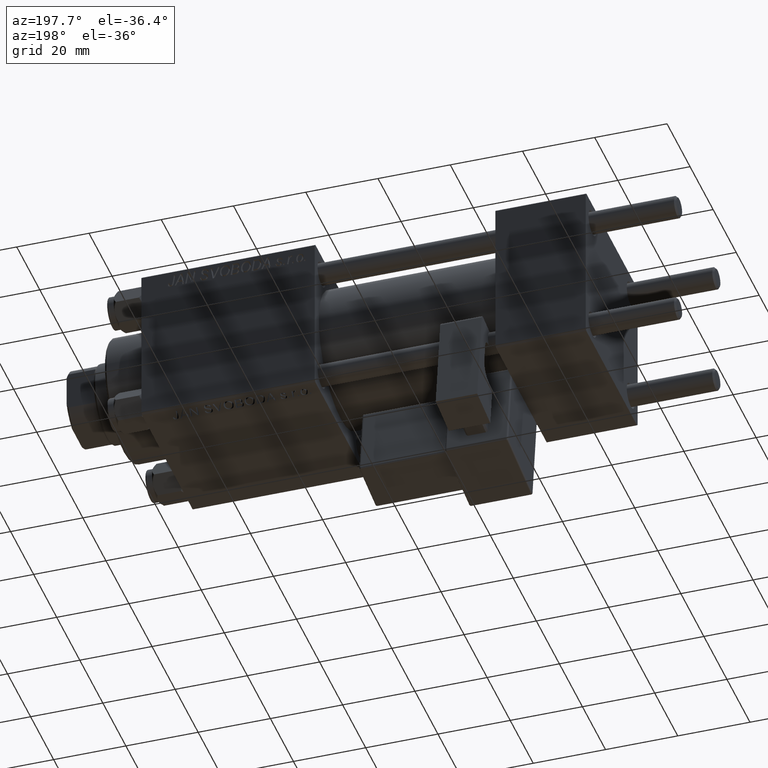
[diagram: clean part render]
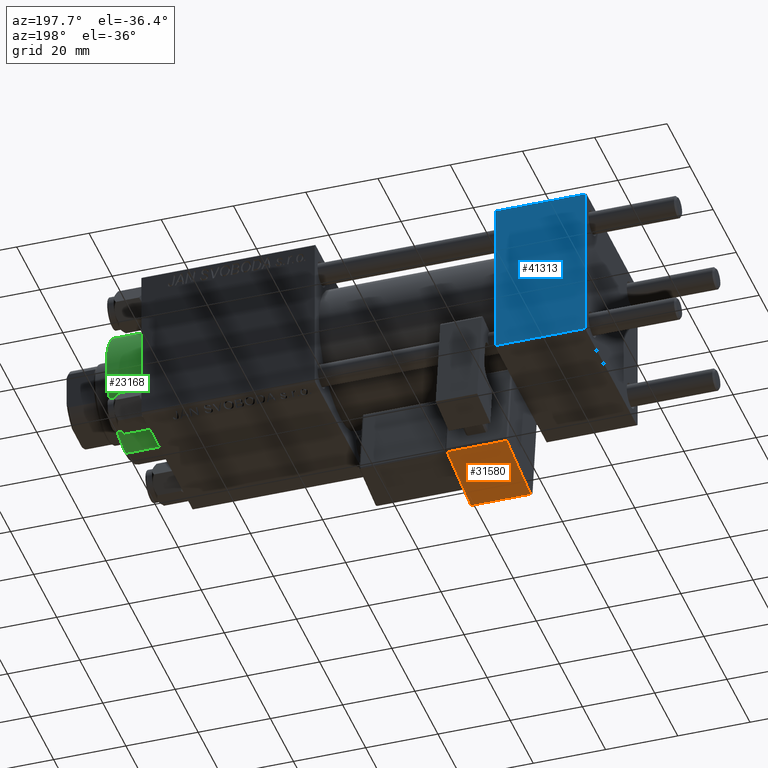
[diagram: same view with three faces highlighted in distinct colors, each labeled with its STEP entity id]
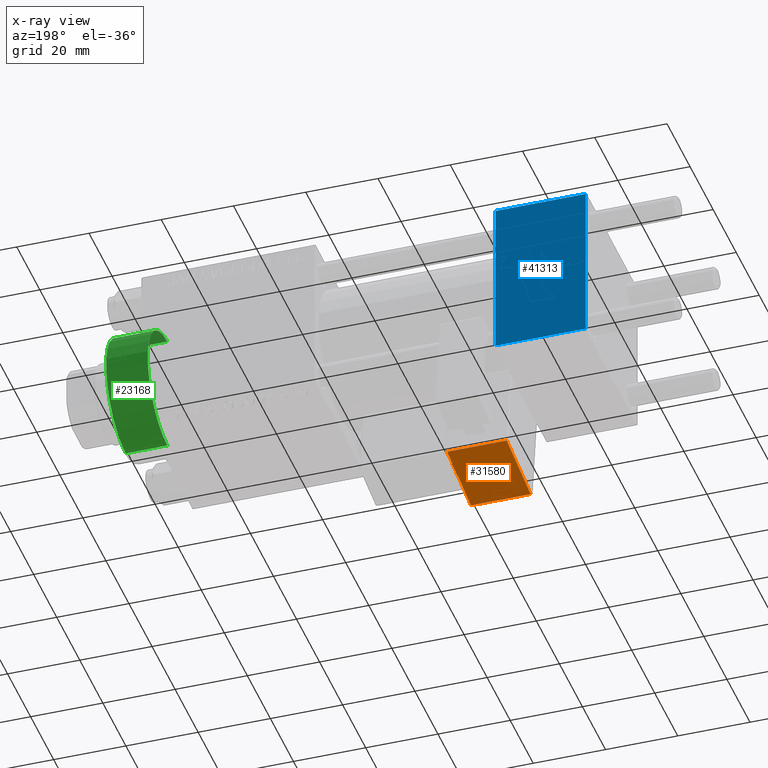
[diagram: x-ray of the same camera — body ghosted, the three highlighted faces saturated]
A machine part, auxiliary view with three faces highlighted in distinct colors.
The next image is the same camera in x-ray (body ghosted, the three faces saturated) — at least one of them is partly hidden behind the body in this view.
Their STEP definitions:

[orange] entity #31580 — the highlighted planar face has unit normal (-0, -0.1399, 0.9902).
#1608 = DIRECTION ( 'NONE',  ( 0.000000000000000000, 0.000000000000000000, 1.000000000000000000 ) ) ;
#3057 = VERTEX_POINT ( 'NONE', #25697 ) ;
#4504 = EDGE_CURVE ( 'NONE', #17625, #52115, #25651, .T. ) ;
#5595 = CARTESIAN_POINT ( 'NONE',  ( -8.250000000000003553, -33.75000000000000000, -1.000000000000000222 ) ) ;
#8889 = VECTOR ( 'NONE', #37096, 1000.000000000000000 ) ;
#9312 = VECTOR ( 'NONE', #40220, 1000.000000000000000 ) ;
#16055 = ORIENTED_EDGE ( 'NONE', *, *, #48258, .T. ) ;
#16996 = LINE ( 'NONE', #29152, #8889 ) ;
#17625 = VERTEX_POINT ( 'NONE', #33726 ) ;
#17654 = VECTOR ( 'NONE', #49747, 1000.000000000000000 ) ;
#17676 = AXIS2_PLACEMENT_3D ( 'NONE', #37821, #1608, #39054 ) ;
#18846 = DIRECTION ( 'NONE',  ( 1.000000000000000000, -0.000000000000000000, 0.000000000000000000 ) ) ;
#19235 = EDGE_CURVE ( 'NONE', #52115, #47515, #26244, .T. ) ;
#22519 = ORIENTED_EDGE ( 'NONE', *, *, #4504, .T. ) ;
#23808 = LINE ( 'NONE', #28045, #9312 ) ;
#23823 = ORIENTED_EDGE ( 'NONE', *, *, #33327, .T. ) ;
#24774 = CARTESIAN_POINT ( 'NONE',  ( 8.250000000000003553, -12.25000000000000000, -1.000000000000000222 ) ) ;
#25651 = LINE ( 'NONE', #5595, #17654 ) ;
#25697 = CARTESIAN_POINT ( 'NONE',  ( 8.250000000000003553, -33.25000000000000000, -1.000000000000000222 ) ) ;
#26244 = LINE ( 'NONE', #51370, #50147 ) ;
#27131 = PLANE ( 'NONE',  #17676 ) ;
#28045 = CARTESIAN_POINT ( 'NONE',  ( 8.750000000000003553, -33.25000000000000000, -1.000000000000000222 ) ) ;
#29152 = CARTESIAN_POINT ( 'NONE',  ( 8.250000000000003553, -33.75000000000000000, -1.000000000000000222 ) ) ;
#30965 = CARTESIAN_POINT ( 'NONE',  ( -8.250000000000003553, -12.25000000000000000, -1.000000000000000222 ) ) ;
#31101 = FACE_OUTER_BOUND ( 'NONE', #40994, .T. ) ;
#31580 = ADVANCED_FACE ( 'NONE', ( #31101 ), #27131, .F. ) ;
#33327 = EDGE_CURVE ( 'NONE', #3057, #17625, #23808, .T. ) ;
#33726 = CARTESIAN_POINT ( 'NONE',  ( -8.250000000000003553, -33.25000000000000000, -1.000000000000000222 ) ) ;
#36751 = ORIENTED_EDGE ( 'NONE', *, *, #19235, .T. ) ;
#37096 = DIRECTION ( 'NONE',  ( -0.000000000000000000, -1.000000000000000000, -0.000000000000000000 ) ) ;
#37821 = CARTESIAN_POINT ( 'NONE',  ( 8.750000000000003553, -33.75000000000000000, -1.000000000000000222 ) ) ;
#39054 = DIRECTION ( 'NONE',  ( 1.000000000000000000, 0.000000000000000000, -0.000000000000000000 ) ) ;
#40220 = DIRECTION ( 'NONE',  ( -1.000000000000000000, -0.000000000000000000, 0.000000000000000000 ) ) ;
#40994 = EDGE_LOOP ( 'NONE', ( #36751, #16055, #23823, #22519 ) ) ;
#47515 = VERTEX_POINT ( 'NONE', #24774 ) ;
#48258 = EDGE_CURVE ( 'NONE', #47515, #3057, #16996, .T. ) ;
#49747 = DIRECTION ( 'NONE',  ( -0.000000000000000000, 1.000000000000000000, 0.000000000000000000 ) ) ;
#50147 = VECTOR ( 'NONE', #18846, 1000.000000000000000 ) ;
#51370 = CARTESIAN_POINT ( 'NONE',  ( 8.750000000000003553, -12.25000000000000000, -1.000000000000000222 ) ) ;
#52115 = VERTEX_POINT ( 'NONE', #30965 ) ;

[blue] entity #41313 — the highlighted planar face has unit normal (0, 1, 0).
#534 = ORIENTED_EDGE ( 'NONE', *, *, #50777, .T. ) ;
#2307 = LINE ( 'NONE', #25273, #17406 ) ;
#2713 = PLANE ( 'NONE',  #12973 ) ;
#6695 = VERTEX_POINT ( 'NONE', #22987 ) ;
#7295 = EDGE_CURVE ( 'NONE', #6695, #30107, #50397, .T. ) ;
#10216 = DIRECTION ( 'NONE',  ( 0.000000000000000000, 0.000000000000000000, -1.000000000000000000 ) ) ;
#10846 = CARTESIAN_POINT ( 'NONE',  ( 0.000000000000000000, 22.50000000000000000, -21.99999999999996803 ) ) ;
#12248 = ORIENTED_EDGE ( 'NONE', *, *, #39938, .T. ) ;
#12973 = AXIS2_PLACEMENT_3D ( 'NONE', #30198, #22780, #46855 ) ;
#14178 = CARTESIAN_POINT ( 'NONE',  ( 25.00000000000000000, 22.50000000000000000, 22.50000000000000355 ) ) ;
#17406 = VECTOR ( 'NONE', #49895, 1000.000000000000000 ) ;
#17580 = CARTESIAN_POINT ( 'NONE',  ( 25.00000000000000000, 22.50000000000000000, -21.99999999999998224 ) ) ;
#17704 = CARTESIAN_POINT ( 'NONE',  ( 25.00000000000000000, 22.50000000000000000, -21.99999999999996803 ) ) ;
#17843 = LINE ( 'NONE', #17580, #45020 ) ;
#21791 = DIRECTION ( 'NONE',  ( -1.000000000000000000, 0.000000000000000000, 0.000000000000000000 ) ) ;
#22780 = DIRECTION ( 'NONE',  ( -0.000000000000000000, 1.000000000000000000, 0.000000000000000000 ) ) ;
#22987 = CARTESIAN_POINT ( 'NONE',  ( 25.00000000000000000, 22.50000000000000000, 21.99999999999999645 ) ) ;
#25273 = CARTESIAN_POINT ( 'NONE',  ( 25.00000000000000000, 22.50000000000000000, 21.99999999999999645 ) ) ;
#25976 = ORIENTED_EDGE ( 'NONE', *, *, #48920, .F. ) ;
#26744 = FACE_OUTER_BOUND ( 'NONE', #39790, .T. ) ;
#29221 = LINE ( 'NONE', #37163, #50290 ) ;
#30107 = VERTEX_POINT ( 'NONE', #17704 ) ;
#30198 = CARTESIAN_POINT ( 'NONE',  ( 25.00000000000000000, 22.50000000000000000, 22.50000000000000355 ) ) ;
#37163 = CARTESIAN_POINT ( 'NONE',  ( 0.000000000000000000, 22.50000000000000000, 22.50000000000000355 ) ) ;
#39110 = VERTEX_POINT ( 'NONE', #48614 ) ;
#39790 = EDGE_LOOP ( 'NONE', ( #47691, #12248, #25976, #534 ) ) ;
#39938 = EDGE_CURVE ( 'NONE', #30107, #49505, #17843, .T. ) ;
#41313 = ADVANCED_FACE ( 'NONE', ( #26744 ), #2713, .T. ) ;
#45020 = VECTOR ( 'NONE', #21791, 1000.000000000000000 ) ;
#45088 = DIRECTION ( 'NONE',  ( 0.000000000000000000, 0.000000000000000000, -1.000000000000000000 ) ) ;
#46855 = DIRECTION ( 'NONE',  ( 0.000000000000000000, -0.000000000000000000, 1.000000000000000000 ) ) ;
#47691 = ORIENTED_EDGE ( 'NONE', *, *, #7295, .T. ) ;
#48614 = CARTESIAN_POINT ( 'NONE',  ( 0.000000000000000000, 22.50000000000000000, 21.99999999999999645 ) ) ;
#48920 = EDGE_CURVE ( 'NONE', #39110, #49505, #29221, .T. ) ;
#49505 = VERTEX_POINT ( 'NONE', #10846 ) ;
#49895 = DIRECTION ( 'NONE',  ( 1.000000000000000000, 0.000000000000000000, 0.000000000000000000 ) ) ;
#50290 = VECTOR ( 'NONE', #45088, 1000.000000000000000 ) ;
#50397 = LINE ( 'NONE', #14178, #51550 ) ;
#50777 = EDGE_CURVE ( 'NONE', #39110, #6695, #2307, .T. ) ;
#51550 = VECTOR ( 'NONE', #10216, 1000.000000000000000 ) ;

[green] entity #23168 — the highlighted cylindrical surface (partial cylindrical patch) has radius 17 mm, axis along (-1, -0, 0).
#1376 = AXIS2_PLACEMENT_3D ( 'NONE', #44155, #3200, #3727 ) ;
#2702 = DIRECTION ( 'NONE',  ( 1.000000000000000000, 0.000000000000000000, 0.000000000000000000 ) ) ;
#3200 = DIRECTION ( 'NONE',  ( 0.000000000000000000, 0.000000000000000000, -1.000000000000000000 ) ) ;
#3727 = DIRECTION ( 'NONE',  ( 1.000000000000000000, 0.000000000000000000, 0.000000000000000000 ) ) ;
#5633 = CIRCLE ( 'NONE', #41922, 17.00000000000000000 ) ;
#6488 = VERTEX_POINT ( 'NONE', #7002 ) ;
#6534 = VERTEX_POINT ( 'NONE', #19409 ) ;
#7002 = CARTESIAN_POINT ( 'NONE',  ( -17.00000000000000000, 0.000000000000000000, 28.69999999999999929 ) ) ;
#9725 = LINE ( 'NONE', #18418, #17192 ) ;
#10383 = CARTESIAN_POINT ( 'NONE',  ( 0.000000000000000000, 0.000000000000000000, 28.69999999999999929 ) ) ;
#12191 = ORIENTED_EDGE ( 'NONE', *, *, #51819, .F. ) ;
#12400 = VECTOR ( 'NONE', #33953, 1000.000000000000000 ) ;
#15014 = EDGE_CURVE ( 'NONE', #6534, #20027, #9725, .T. ) ;
#15828 = FACE_OUTER_BOUND ( 'NONE', #26375, .T. ) ;
#16611 = ORIENTED_EDGE ( 'NONE', *, *, #15014, .T. ) ;
#17192 = VECTOR ( 'NONE', #49386, 1000.000000000000000 ) ;
#18297 = DIRECTION ( 'NONE',  ( 0.000000000000000000, 0.000000000000000000, 1.000000000000000000 ) ) ;
#18418 = CARTESIAN_POINT ( 'NONE',  ( 17.00000000000000000, 2.081899558550500280E-15, 40.70000000000000284 ) ) ;
#19409 = CARTESIAN_POINT ( 'NONE',  ( 17.00000000000000000, 2.081899558550500280E-15, 40.19999999999999574 ) ) ;
#20027 = VERTEX_POINT ( 'NONE', #32499 ) ;
#20828 = CARTESIAN_POINT ( 'NONE',  ( 0.000000000000000000, 0.000000000000000000, 40.70000000000000284 ) ) ;
#21344 = DIRECTION ( 'NONE',  ( -0.000000000000000000, -0.000000000000000000, -1.000000000000000000 ) ) ;
#21785 = LINE ( 'NONE', #46639, #12400 ) ;
#23168 = ADVANCED_FACE ( 'NONE', ( #15828 ), #24006, .T. ) ;
#24006 = CYLINDRICAL_SURFACE ( 'NONE', #41832, 17.00000000000000000 ) ;
#26375 = EDGE_LOOP ( 'NONE', ( #36732, #16611, #51181, #12191 ) ) ;
#32499 = CARTESIAN_POINT ( 'NONE',  ( 17.00000000000000000, 2.081899558550500280E-15, 28.69999999999999929 ) ) ;
#32680 = CARTESIAN_POINT ( 'NONE',  ( -17.00000000000000000, 0.000000000000000000, 40.19999999999999574 ) ) ;
#33953 = DIRECTION ( 'NONE',  ( -0.000000000000000000, -0.000000000000000000, -1.000000000000000000 ) ) ;
#34941 = VERTEX_POINT ( 'NONE', #32680 ) ;
#36732 = ORIENTED_EDGE ( 'NONE', *, *, #50347, .T. ) ;
#41832 = AXIS2_PLACEMENT_3D ( 'NONE', #20828, #21344, #45676 ) ;
#41922 = AXIS2_PLACEMENT_3D ( 'NONE', #10383, #18297, #2702 ) ;
#44155 = CARTESIAN_POINT ( 'NONE',  ( 0.000000000000000000, 0.000000000000000000, 40.19999999999999574 ) ) ;
#45676 = DIRECTION ( 'NONE',  ( -1.000000000000000000, 0.000000000000000000, 0.000000000000000000 ) ) ;
#46639 = CARTESIAN_POINT ( 'NONE',  ( -17.00000000000000000, 0.000000000000000000, 40.70000000000000284 ) ) ;
#49386 = DIRECTION ( 'NONE',  ( -0.000000000000000000, -0.000000000000000000, -1.000000000000000000 ) ) ;
#50347 = EDGE_CURVE ( 'NONE', #34941, #6534, #52054, .T. ) ;
#51181 = ORIENTED_EDGE ( 'NONE', *, *, #52077, .T. ) ;
#51819 = EDGE_CURVE ( 'NONE', #34941, #6488, #21785, .T. ) ;
#52054 = CIRCLE ( 'NONE', #1376, 17.00000000000000000 ) ;
#52077 = EDGE_CURVE ( 'NONE', #20027, #6488, #5633, .T. ) ;